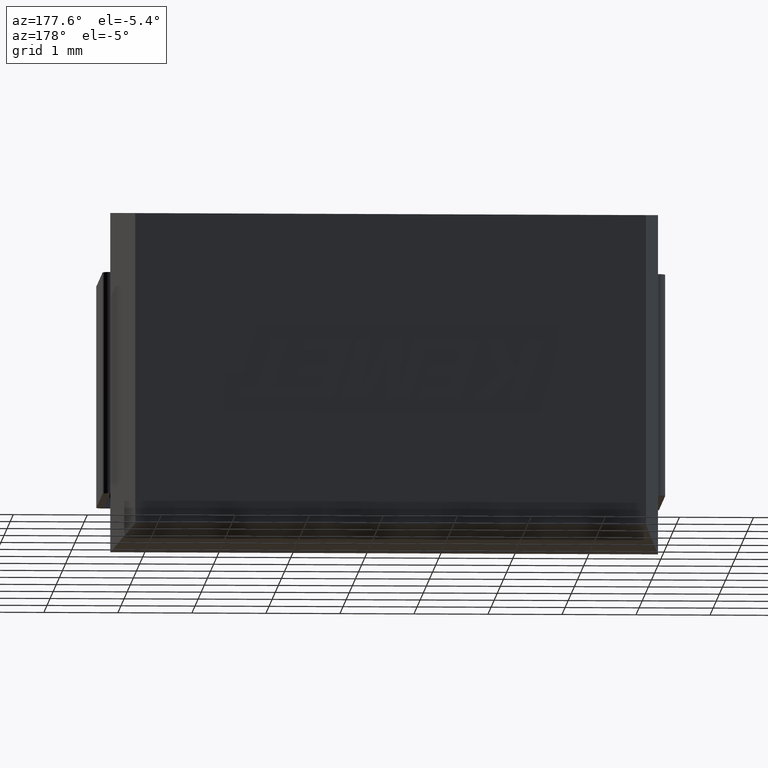
[diagram: clean part render]
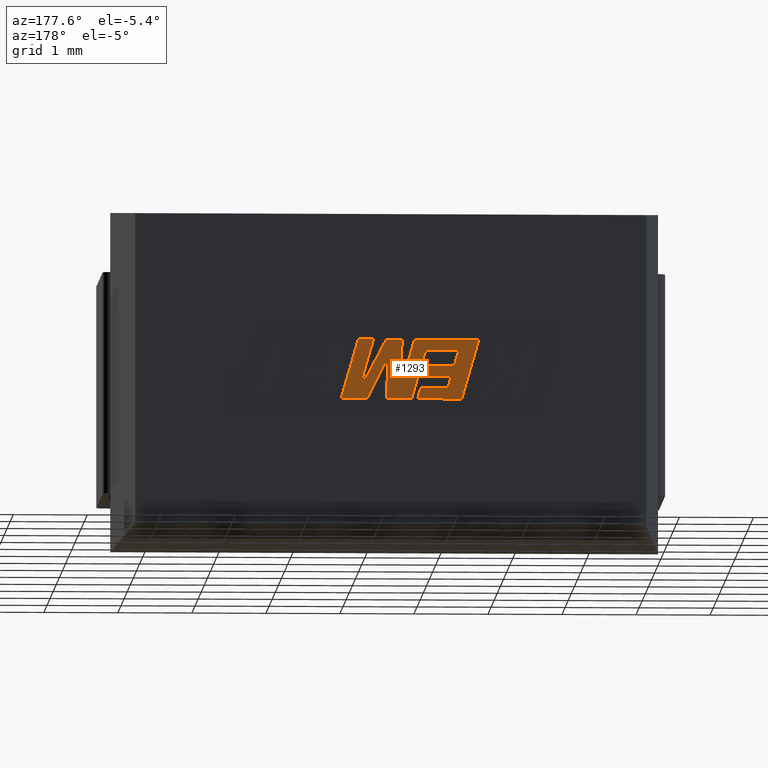
[diagram: same view with one face highlighted and labeled with its STEP entity id]
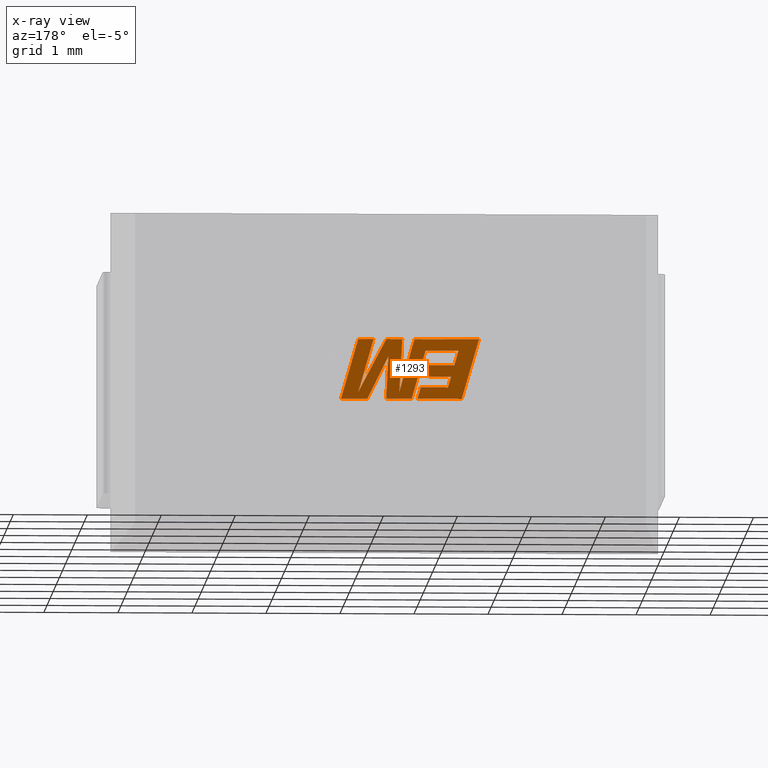
[diagram: x-ray of the same camera — body ghosted, the highlighted face saturated]
A machine part, auxiliary view. The second image highlights one B-rep face of the part: STEP entity #1293.
The next image is the same camera in x-ray: the body ghosted, the highlighted face saturated — about 0% of this face is hidden behind the body in this view.
In plain terms, the highlighted planar face has unit normal (0, -1, -0).
Its self-contained STEP definition (entity closure, byte-faithful):
#97 = DIRECTION ( 'NONE',  ( 1.000000000000000000, 0.000000000000000000, 2.989837354970568653E-16 ) ) ;
#108 = DIRECTION ( 'NONE',  ( -0.2760118818968559373, 0.000000000000000000, 0.9611542233438690186 ) ) ;
#157 = LINE ( 'NONE', #1842, #3386 ) ;
#160 = VECTOR ( 'NONE', #97, 1000.000000000000000 ) ;
#176 = PLANE ( 'NONE',  #2874 ) ;
#214 = DIRECTION ( 'NONE',  ( 1.000000000000000000, 0.000000000000000000, 0.000000000000000000 ) ) ;
#219 = VERTEX_POINT ( 'NONE', #1428 ) ;
#238 = VECTOR ( 'NONE', #214, 1000.000000000000000 ) ;
#259 = LINE ( 'NONE', #3641, #1790 ) ;
#278 = LINE ( 'NONE', #3984, #238 ) ;
#281 = ORIENTED_EDGE ( 'NONE', *, *, #2759, .T. ) ;
#335 = CARTESIAN_POINT ( 'NONE',  ( 2.741056880455718492, 4.205000000000000071, -2.702191784705270106 ) ) ;
#389 = LINE ( 'NONE', #747, #3820 ) ;
#440 = CARTESIAN_POINT ( 'NONE',  ( 3.293244040855623389, 4.205000000000000071, -2.548686171911270559 ) ) ;
#467 = DIRECTION ( 'NONE',  ( 0.2746459304916899491, 0.000000000000000000, -0.9615454294334478957 ) ) ;
#487 = VERTEX_POINT ( 'NONE', #698 ) ;
#507 = EDGE_CURVE ( 'NONE', #2630, #4204, #389, .T. ) ;
#514 = VECTOR ( 'NONE', #4066, 1000.000000000000000 ) ;
#515 = VECTOR ( 'NONE', #3062, 1000.000000000000114 ) ;
#575 = ORIENTED_EDGE ( 'NONE', *, *, #1912, .T. ) ;
#598 = DIRECTION ( 'NONE',  ( 1.000000000000000000, 0.000000000000000000, 0.000000000000000000 ) ) ;
#647 = VERTEX_POINT ( 'NONE', #1897 ) ;
#698 = CARTESIAN_POINT ( 'NONE',  ( 3.377795837061557727, 4.205000000000000071, -1.895731297701219731 ) ) ;
#705 = ORIENTED_EDGE ( 'NONE', *, *, #1991, .T. ) ;
#719 = CARTESIAN_POINT ( 'NONE',  ( 3.543701856940162376, 4.205000000000000071, -1.895731297701219953 ) ) ;
#737 = DIRECTION ( 'NONE',  ( -1.000000000000000000, 0.000000000000000000, 0.000000000000000000 ) ) ;
#747 = CARTESIAN_POINT ( 'NONE',  ( 3.932371369323392596, 4.205000000000000071, -1.895731297701219953 ) ) ;
#775 = DIRECTION ( 'NONE',  ( 1.000000000000000000, 0.000000000000000000, 0.000000000000000000 ) ) ;
#819 = LINE ( 'NONE', #3828, #4056 ) ;
#824 = LINE ( 'NONE', #2828, #3910 ) ;
#834 = EDGE_CURVE ( 'NONE', #219, #1192, #157, .T. ) ;
#837 = CARTESIAN_POINT ( 'NONE',  ( 4.139541785171635624, 4.205000000000000071, -2.617159370927629070 ) ) ;
#844 = DIRECTION ( 'NONE',  ( 0.000000000000000000, -1.000000000000000000, -0.000000000000000000 ) ) ;
#845 = VERTEX_POINT ( 'NONE', #3837 ) ;
#847 = DIRECTION ( 'NONE',  ( -0.05596501978068773447, 0.000000000000000000, 0.9984327301130242471 ) ) ;
#860 = VECTOR ( 'NONE', #2088, 1000.000000000000000 ) ;
#866 = CARTESIAN_POINT ( 'NONE',  ( 4.015460696978008670, 4.205000000000000071, -2.702191784705270106 ) ) ;
#962 = ORIENTED_EDGE ( 'NONE', *, *, #1603, .T. ) ;
#974 = CARTESIAN_POINT ( 'NONE',  ( 4.139541785171635624, 4.205000000000000071, -2.617159370927629070 ) ) ;
#1043 = CARTESIAN_POINT ( 'NONE',  ( 4.015460696978008670, 4.205000000000000071, -2.702191784705270106 ) ) ;
#1046 = CARTESIAN_POINT ( 'NONE',  ( 4.137305445195226916, 4.205000000000000071, -1.895731297701220397 ) ) ;
#1060 = CARTESIAN_POINT ( 'NONE',  ( 2.882164538290417077, 4.205000000000000071, -2.398684648839587652 ) ) ;
#1126 = LINE ( 'NONE', #2453, #160 ) ;
#1192 = VERTEX_POINT ( 'NONE', #719 ) ;
#1232 = CARTESIAN_POINT ( 'NONE',  ( 2.839629940447088607, 4.205000000000000071, -2.249597769201114872 ) ) ;
#1242 = DIRECTION ( 'NONE',  ( 0.4668459304955208111, 0.000000000000000000, -0.8843386665637613664 ) ) ;
#1258 = VERTEX_POINT ( 'NONE', #3925 ) ;
#1293 = ADVANCED_FACE ( 'NONE', ( #3572 ), #176, .F. ) ;
#1307 = EDGE_CURVE ( 'NONE', #4009, #2260, #2767, .T. ) ;
#1316 = ORIENTED_EDGE ( 'NONE', *, *, #3677, .T. ) ;
#1337 = ORIENTED_EDGE ( 'NONE', *, *, #1307, .T. ) ;
#1338 = ORIENTED_EDGE ( 'NONE', *, *, #4081, .T. ) ;
#1346 = DIRECTION ( 'NONE',  ( -0.4443210308328901514, 0.000000000000000000, 0.8958676361827107026 ) ) ;
#1408 = ORIENTED_EDGE ( 'NONE', *, *, #1827, .T. ) ;
#1427 = DIRECTION ( 'NONE',  ( -1.000000000000000000, 0.000000000000000000, 0.000000000000000000 ) ) ;
#1428 = CARTESIAN_POINT ( 'NONE',  ( 3.583946168008536937, 4.205000000000000071, -2.613701871623553163 ) ) ;
#1534 = ORIENTED_EDGE ( 'NONE', *, *, #2777, .T. ) ;
#1542 = EDGE_CURVE ( 'NONE', #3026, #2630, #3515, .T. ) ;
#1567 = CARTESIAN_POINT ( 'NONE',  ( 3.336842861889568024, 4.205000000000000071, -2.702191784705270106 ) ) ;
#1602 = VECTOR ( 'NONE', #598, 1000.000000000000000 ) ;
#1603 = EDGE_CURVE ( 'NONE', #647, #487, #1126, .T. ) ;
#1609 = LINE ( 'NONE', #2252, #2354 ) ;
#1675 = CARTESIAN_POINT ( 'NONE',  ( 3.229577011083042848, 4.205000000000000071, -2.049160894554300949 ) ) ;
#1718 = CARTESIAN_POINT ( 'NONE',  ( 3.417282441482504041, 4.205000000000000071, -2.702191784705270106 ) ) ;
#1723 = VECTOR ( 'NONE', #1242, 1000.000000000000114 ) ;
#1737 = CARTESIAN_POINT ( 'NONE',  ( 3.932371369323392596, 4.205000000000000071, -1.895731297701219953 ) ) ;
#1741 = LINE ( 'NONE', #3081, #4137 ) ;
#1789 = EDGE_CURVE ( 'NONE', #2335, #3497, #1741, .T. ) ;
#1790 = VECTOR ( 'NONE', #2213, 1000.000000000000114 ) ;
#1802 = VERTEX_POINT ( 'NONE', #3325 ) ;
#1827 = EDGE_CURVE ( 'NONE', #2024, #845, #819, .T. ) ;
#1842 = CARTESIAN_POINT ( 'NONE',  ( 3.583946168008536937, 4.205000000000000071, -2.613701871623553163 ) ) ;
#1889 = VERTEX_POINT ( 'NONE', #440 ) ;
#1895 = LINE ( 'NONE', #3247, #4207 ) ;
#1897 = CARTESIAN_POINT ( 'NONE',  ( 2.508990016831305070, 4.205000000000000071, -1.895731297701219509 ) ) ;
#1912 = EDGE_CURVE ( 'NONE', #4403, #1889, #2782, .T. ) ;
#1944 = LINE ( 'NONE', #1232, #1602 ) ;
#1946 = ORIENTED_EDGE ( 'NONE', *, *, #2204, .T. ) ;
#1948 = ORIENTED_EDGE ( 'NONE', *, *, #834, .T. ) ;
#1990 = ORIENTED_EDGE ( 'NONE', *, *, #3830, .T. ) ;
#1991 = EDGE_CURVE ( 'NONE', #2260, #4403, #259, .T. ) ;
#2013 = VERTEX_POINT ( 'NONE', #866 ) ;
#2016 = CARTESIAN_POINT ( 'NONE',  ( 4.137305445195226916, 4.205000000000000071, -1.895731297701220397 ) ) ;
#2024 = VERTEX_POINT ( 'NONE', #1567 ) ;
#2035 = VERTEX_POINT ( 'NONE', #2233 ) ;
#2036 = LINE ( 'NONE', #3091, #2130 ) ;
#2054 = VECTOR ( 'NONE', #775, 1000.000000000000000 ) ;
#2081 = CARTESIAN_POINT ( 'NONE',  ( 3.228306809212786010, 4.205000000000000071, -2.398684648839587652 ) ) ;
#2088 = DIRECTION ( 'NONE',  ( -1.000000000000000000, 0.000000000000000000, 0.000000000000000000 ) ) ;
#2130 = VECTOR ( 'NONE', #2438, 1000.000000000000000 ) ;
#2204 = EDGE_CURVE ( 'NONE', #1802, #2956, #3013, .T. ) ;
#2213 = DIRECTION ( 'NONE',  ( 0.2793947940878285796, 0.000000000000000000, -0.9601763114327596105 ) ) ;
#2230 = EDGE_CURVE ( 'NONE', #4204, #1258, #2703, .T. ) ;
#2233 = CARTESIAN_POINT ( 'NONE',  ( 3.185723168826146257, 4.205000000000000071, -2.249597769201114872 ) ) ;
#2237 = CARTESIAN_POINT ( 'NONE',  ( 3.228306809212786010, 4.205000000000000071, -2.398684648839587652 ) ) ;
#2252 = CARTESIAN_POINT ( 'NONE',  ( 3.293244040855623389, 4.205000000000000071, -2.548686171911270559 ) ) ;
#2260 = VERTEX_POINT ( 'NONE', #1060 ) ;
#2335 = VERTEX_POINT ( 'NONE', #1675 ) ;
#2340 = ORIENTED_EDGE ( 'NONE', *, *, #3471, .T. ) ;
#2351 = VECTOR ( 'NONE', #108, 1000.000000000000114 ) ;
#2354 = VECTOR ( 'NONE', #3588, 1000.000000000000227 ) ;
#2369 = LINE ( 'NONE', #1718, #515 ) ;
#2438 = DIRECTION ( 'NONE',  ( 0.2740217765954056639, 0.000000000000000000, -0.9617234872620599173 ) ) ;
#2453 = CARTESIAN_POINT ( 'NONE',  ( 2.508990016831305070, 4.205000000000000071, -1.895731297701219509 ) ) ;
#2493 = ORIENTED_EDGE ( 'NONE', *, *, #507, .T. ) ;
#2515 = ORIENTED_EDGE ( 'NONE', *, *, #2230, .T. ) ;
#2520 = EDGE_CURVE ( 'NONE', #2035, #4009, #824, .T. ) ;
#2630 = VERTEX_POINT ( 'NONE', #1737 ) ;
#2662 = EDGE_LOOP ( 'NONE', ( #2340, #3813, #3490, #1946, #1338, #3270, #1316, #3084, #3774, #1337, #705, #575, #281, #1408, #3519, #962, #4062, #1948, #1534, #1990, #3726, #2493, #2515 ) ) ;
#2703 = LINE ( 'NONE', #2016, #3550 ) ;
#2748 = EDGE_CURVE ( 'NONE', #487, #219, #4297, .T. ) ;
#2759 = EDGE_CURVE ( 'NONE', #1889, #2024, #1609, .T. ) ;
#2760 = DIRECTION ( 'NONE',  ( -0.2765379750249962187, 0.000000000000000000, 0.9610029908221277006 ) ) ;
#2767 = LINE ( 'NONE', #2237, #3871 ) ;
#2770 = EDGE_CURVE ( 'NONE', #3219, #2035, #1944, .T. ) ;
#2777 = EDGE_CURVE ( 'NONE', #1192, #4343, #278, .T. ) ;
#2778 = LINE ( 'NONE', #3430, #860 ) ;
#2782 = LINE ( 'NONE', #3153, #2054 ) ;
#2822 = VECTOR ( 'NONE', #1346, 1000.000000000000227 ) ;
#2828 = CARTESIAN_POINT ( 'NONE',  ( 3.185723168826146257, 4.205000000000000071, -2.249597769201114872 ) ) ;
#2838 = CARTESIAN_POINT ( 'NONE',  ( 2.782519898721566687, 4.205000000000000071, -2.049160894554300949 ) ) ;
#2853 = CARTESIAN_POINT ( 'NONE',  ( 3.758697010579060915, 4.205000000000000071, -1.895731297701219953 ) ) ;
#2874 = AXIS2_PLACEMENT_3D ( 'NONE', #4226, #844, #3220 ) ;
#2926 = CARTESIAN_POINT ( 'NONE',  ( 3.758697010579060915, 4.205000000000000071, -1.895731297701219953 ) ) ;
#2948 = CARTESIAN_POINT ( 'NONE',  ( 3.417282441482504041, 4.205000000000000071, -2.702191784705270106 ) ) ;
#2956 = VERTEX_POINT ( 'NONE', #2948 ) ;
#2963 = DIRECTION ( 'NONE',  ( 0.05375259206908022946, 0.000000000000000000, -0.9985542843760948362 ) ) ;
#2995 = EDGE_CURVE ( 'NONE', #2013, #4181, #3733, .T. ) ;
#3013 = LINE ( 'NONE', #3683, #514 ) ;
#3026 = VERTEX_POINT ( 'NONE', #974 ) ;
#3062 = DIRECTION ( 'NONE',  ( -0.2762517575165896466, 0.000000000000000000, 0.9610853065513982330 ) ) ;
#3081 = CARTESIAN_POINT ( 'NONE',  ( 3.229577011083042848, 4.205000000000000071, -2.049160894554300949 ) ) ;
#3084 = ORIENTED_EDGE ( 'NONE', *, *, #2770, .T. ) ;
#3091 = CARTESIAN_POINT ( 'NONE',  ( 2.782519898721566687, 4.205000000000000071, -2.049160894554300949 ) ) ;
#3153 = CARTESIAN_POINT ( 'NONE',  ( 2.925812401867613932, 4.205000000000000071, -2.548686171911270559 ) ) ;
#3219 = VERTEX_POINT ( 'NONE', #4329 ) ;
#3220 = DIRECTION ( 'NONE',  ( 0.000000000000000000, 0.000000000000000000, -1.000000000000000000 ) ) ;
#3235 = CARTESIAN_POINT ( 'NONE',  ( 3.377795837061557727, 4.205000000000000071, -1.895731297701219731 ) ) ;
#3247 = CARTESIAN_POINT ( 'NONE',  ( 3.729711267094204530, 4.205000000000000071, -2.126046051043519736 ) ) ;
#3270 = ORIENTED_EDGE ( 'NONE', *, *, #1789, .T. ) ;
#3325 = CARTESIAN_POINT ( 'NONE',  ( 3.760725431349892567, 4.205000000000000071, -2.702191784705270106 ) ) ;
#3386 = VECTOR ( 'NONE', #847, 1000.000000000000114 ) ;
#3402 = CARTESIAN_POINT ( 'NONE',  ( 3.729711267094204530, 4.205000000000000071, -2.126046051043519736 ) ) ;
#3430 = CARTESIAN_POINT ( 'NONE',  ( 4.369168781617137398, 4.205000000000000071, -2.702191784705270106 ) ) ;
#3471 = EDGE_CURVE ( 'NONE', #1258, #2013, #2778, .T. ) ;
#3490 = ORIENTED_EDGE ( 'NONE', *, *, #3891, .T. ) ;
#3497 = VERTEX_POINT ( 'NONE', #2838 ) ;
#3507 = LINE ( 'NONE', #2853, #1723 ) ;
#3515 = LINE ( 'NONE', #837, #2351 ) ;
#3519 = ORIENTED_EDGE ( 'NONE', *, *, #4020, .T. ) ;
#3550 = VECTOR ( 'NONE', #4415, 1000.000000000000114 ) ;
#3572 = FACE_OUTER_BOUND ( 'NONE', #2662, .T. ) ;
#3588 = DIRECTION ( 'NONE',  ( 0.2732148821745548073, 0.000000000000000000, -0.9619530280415691248 ) ) ;
#3641 = CARTESIAN_POINT ( 'NONE',  ( 2.882164538290417077, 4.205000000000000071, -2.398684648839587652 ) ) ;
#3677 = EDGE_CURVE ( 'NONE', #3497, #3219, #2036, .T. ) ;
#3683 = CARTESIAN_POINT ( 'NONE',  ( 3.760725431349892567, 4.205000000000000071, -2.702191784705270106 ) ) ;
#3695 = VECTOR ( 'NONE', #2760, 1000.000000000000114 ) ;
#3726 = ORIENTED_EDGE ( 'NONE', *, *, #1542, .T. ) ;
#3733 = LINE ( 'NONE', #1043, #2822 ) ;
#3748 = LINE ( 'NONE', #335, #3695 ) ;
#3774 = ORIENTED_EDGE ( 'NONE', *, *, #2520, .T. ) ;
#3813 = ORIENTED_EDGE ( 'NONE', *, *, #2995, .T. ) ;
#3820 = VECTOR ( 'NONE', #4093, 1000.000000000000000 ) ;
#3828 = CARTESIAN_POINT ( 'NONE',  ( 3.336842861889568024, 4.205000000000000071, -2.702191784705270106 ) ) ;
#3830 = EDGE_CURVE ( 'NONE', #4343, #3026, #3507, .T. ) ;
#3837 = CARTESIAN_POINT ( 'NONE',  ( 2.741056880455718492, 4.205000000000000071, -2.702191784705270106 ) ) ;
#3871 = VECTOR ( 'NONE', #3874, 1000.000000000000000 ) ;
#3874 = DIRECTION ( 'NONE',  ( -1.000000000000000000, 0.000000000000000000, 0.000000000000000000 ) ) ;
#3891 = EDGE_CURVE ( 'NONE', #4181, #1802, #1895, .T. ) ;
#3910 = VECTOR ( 'NONE', #467, 1000.000000000000227 ) ;
#3925 = CARTESIAN_POINT ( 'NONE',  ( 4.369168781617137398, 4.205000000000000071, -2.702191784705270106 ) ) ;
#3984 = CARTESIAN_POINT ( 'NONE',  ( 3.543701856940162376, 4.205000000000000071, -1.895731297701219953 ) ) ;
#4009 = VERTEX_POINT ( 'NONE', #2081 ) ;
#4020 = EDGE_CURVE ( 'NONE', #845, #647, #3748, .T. ) ;
#4056 = VECTOR ( 'NONE', #1427, 1000.000000000000000 ) ;
#4062 = ORIENTED_EDGE ( 'NONE', *, *, #2748, .T. ) ;
#4066 = DIRECTION ( 'NONE',  ( -1.000000000000000000, 0.000000000000000000, 0.000000000000000000 ) ) ;
#4071 = CARTESIAN_POINT ( 'NONE',  ( 2.925812401867613932, 4.205000000000000071, -2.548686171911270559 ) ) ;
#4081 = EDGE_CURVE ( 'NONE', #2956, #2335, #2369, .T. ) ;
#4093 = DIRECTION ( 'NONE',  ( 1.000000000000000000, 0.000000000000000000, -2.116196963092782927E-15 ) ) ;
#4137 = VECTOR ( 'NONE', #737, 1000.000000000000000 ) ;
#4181 = VERTEX_POINT ( 'NONE', #3402 ) ;
#4204 = VERTEX_POINT ( 'NONE', #1046 ) ;
#4207 = VECTOR ( 'NONE', #2963, 1000.000000000000114 ) ;
#4226 = CARTESIAN_POINT ( 'NONE',  ( 0.000000000000000000, 4.204999999999998295, 0.000000000000000000 ) ) ;
#4294 = VECTOR ( 'NONE', #4335, 1000.000000000000114 ) ;
#4297 = LINE ( 'NONE', #3235, #4294 ) ;
#4329 = CARTESIAN_POINT ( 'NONE',  ( 2.839629940447088607, 4.205000000000000071, -2.249597769201114872 ) ) ;
#4335 = DIRECTION ( 'NONE',  ( 0.2759782365590708886, 0.000000000000000000, -0.9611638845408962961 ) ) ;
#4343 = VERTEX_POINT ( 'NONE', #2926 ) ;
#4403 = VERTEX_POINT ( 'NONE', #4071 ) ;
#4415 = DIRECTION ( 'NONE',  ( 0.2763139702539123554, 0.000000000000000000, -0.9610674221107070592 ) ) ;